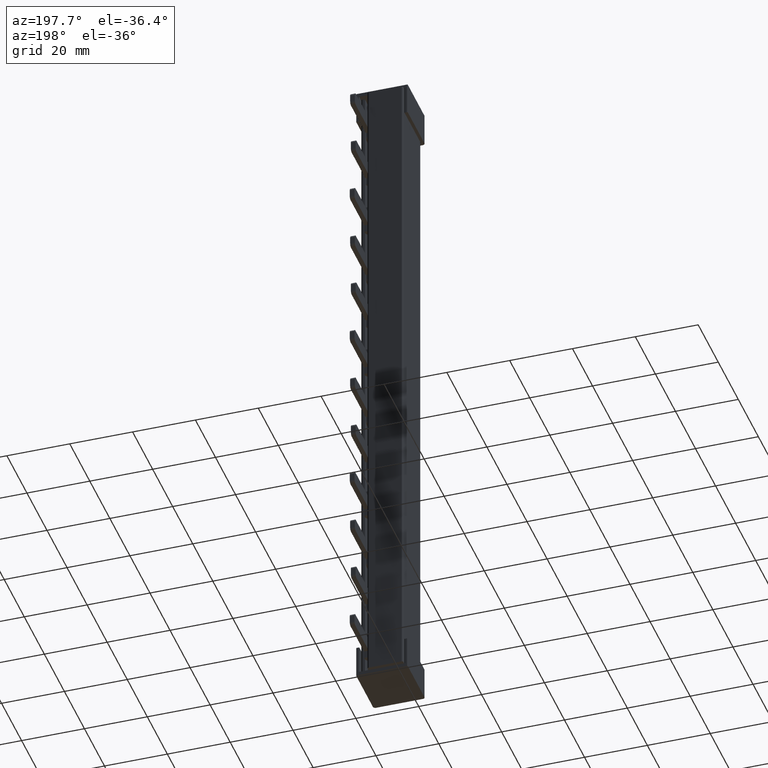
[diagram: clean part render]
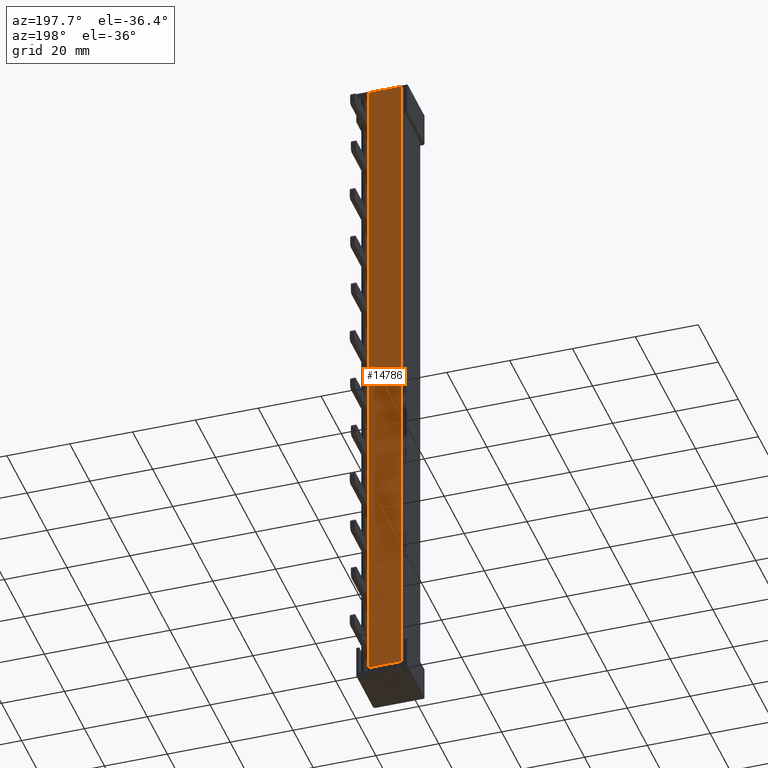
[diagram: same view with one face highlighted and labeled with its STEP entity id]
A machine part, auxiliary view. The second image highlights one B-rep face of the part: STEP entity #14786.
In plain terms, the highlighted planar face has unit normal (-0, 1, 0).
Its self-contained STEP definition (entity closure, byte-faithful):
#1146 = CARTESIAN_POINT ( 'NONE',  ( -0.1240000000000006500, 17.70000000000002100, 217.7999999999999800 ) ) ;
#1189 = CARTESIAN_POINT ( 'NONE',  ( 10.24323328473354300, 17.70000000000003800, 217.7999999999999800 ) ) ;
#1198 = CARTESIAN_POINT ( 'NONE',  ( 10.24323328473354300, 17.70000000000003800, 1.200000000000000000 ) ) ;
#2373 = CARTESIAN_POINT ( 'NONE',  ( -0.1240000000000006500, 17.70000000000002100, 1.200000000000000000 ) ) ;
#2956 = DIRECTION ( 'NONE',  ( -2.677240383555454500E-015, 1.000000000000000000, 0.0000000000000000000 ) ) ;
#2968 = DIRECTION ( 'NONE',  ( -1.000000000000000000, -2.677240383555454500E-015, 0.0000000000000000000 ) ) ;
#2986 = FACE_OUTER_BOUND ( 'NONE', #21589, .T. ) ;
#2989 = PLANE ( 'NONE',  #17098 ) ;
#2999 = CARTESIAN_POINT ( 'NONE',  ( 6.525548534933011300, 17.70000000000002800, 220.2000000000000200 ) ) ;
#3604 = LINE ( 'NONE', #3606, #18985 ) ;
#3606 = CARTESIAN_POINT ( 'NONE',  ( 6.525548534933011300, 17.70000000000002800, 217.7999999999999800 ) ) ;
#3608 = DIRECTION ( 'NONE',  ( 1.000000000000000000, 2.677240383555454500E-015, -0.0000000000000000000 ) ) ;
#3880 = CARTESIAN_POINT ( 'NONE',  ( 10.24323328473354500, 17.70000000000003800, 220.2000000000000200 ) ) ;
#3892 = LINE ( 'NONE', #3880, #18844 ) ;
#3907 = DIRECTION ( 'NONE',  ( -0.0000000000000000000, -0.0000000000000000000, -1.000000000000000000 ) ) ;
#3927 = DIRECTION ( 'NONE',  ( -0.0000000000000000000, -0.0000000000000000000, -1.000000000000000000 ) ) ;
#3941 = CARTESIAN_POINT ( 'NONE',  ( -0.1240000000000000000, 17.70000000000002800, 220.2000000000000200 ) ) ;
#3958 = LINE ( 'NONE', #3941, #18878 ) ;
#4486 = CARTESIAN_POINT ( 'NONE',  ( 6.525548534933011300, 17.70000000000002800, 1.200000000000000000 ) ) ;
#4491 = LINE ( 'NONE', #4486, #18993 ) ;
#4495 = DIRECTION ( 'NONE',  ( -1.000000000000000000, -2.677240383555454500E-015, 0.0000000000000000000 ) ) ;
#6220 = EDGE_CURVE ( 'NONE', #11945, #11947, #3892, .T. ) ;
#6238 = EDGE_CURVE ( 'NONE', #11953, #12016, #3958, .T. ) ;
#6295 = EDGE_CURVE ( 'NONE', #11953, #11945, #3604, .T. ) ;
#6327 = EDGE_CURVE ( 'NONE', #11947, #12016, #4491, .T. ) ;
#11945 = VERTEX_POINT ( 'NONE', #1189 ) ;
#11947 = VERTEX_POINT ( 'NONE', #1198 ) ;
#11953 = VERTEX_POINT ( 'NONE', #1146 ) ;
#12016 = VERTEX_POINT ( 'NONE', #2373 ) ;
#14786 = ADVANCED_FACE ( 'NONE', ( #2986 ), #2989, .T. ) ;
#15483 = ORIENTED_EDGE ( 'NONE', *, *, #6238, .F. ) ;
#15488 = ORIENTED_EDGE ( 'NONE', *, *, #6295, .T. ) ;
#15506 = ORIENTED_EDGE ( 'NONE', *, *, #6327, .T. ) ;
#15508 = ORIENTED_EDGE ( 'NONE', *, *, #6220, .T. ) ;
#17098 = AXIS2_PLACEMENT_3D ( 'NONE', #2999, #2956, #2968 ) ;
#18844 = VECTOR ( 'NONE', #3907, 1000.000000000000000 ) ;
#18878 = VECTOR ( 'NONE', #3927, 1000.000000000000000 ) ;
#18985 = VECTOR ( 'NONE', #3608, 1000.000000000000000 ) ;
#18993 = VECTOR ( 'NONE', #4495, 1000.000000000000000 ) ;
#21589 = EDGE_LOOP ( 'NONE', ( #15508, #15506, #15483, #15488 ) ) ;